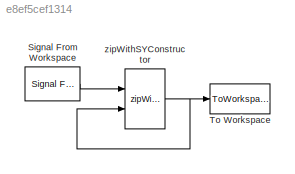
MODEL slx_e8ef5cef1314
KIND model
CONFIG AbsTol = auto
CONFIG EnableMultiTasking = off
CONFIG FixedStep = auto
CONFIG MaxStep = auto
CONFIG MinStep = auto
CONFIG RelTol = 1e-3
CONFIG SampleTimeConstraint = Unconstrained
CONFIG SolverName = VariableStepAuto
CONFIG StartTime = 0.0
CONFIG StopTime = 10.0
BLOCK [Reference] Signal From Workspace  REF=dspsrcs4/Signal From
Workspace
  Ports = [0, 1]
  SourceBlock = dspsrcs4/Signal From\nWorkspace
  SourceProductBaseCode = DS
  SourceType = Signal From Workspace
BLOCK [ToWorkspace] To Workspace
  FixptAsFi = on
  MaxDataPoints = inf
  Ports = [1]
  SampleTime = -1
  VariableName = simout
BLOCK [Reference] zipWithSYConstructor  REF=SimulinkForSyDe/zipWithSYConstructor
  Ports = [2, 1]
  SourceBlock = SimulinkForSyDe/zipWithSYConstructor
  SourceProductName = Simulink ForSyDe
  SourceType = SubSystem
LINE Signal From Workspace:1 -> zipWithSYConstructor:1
NET zipWithSYConstructor:1 -> To Workspace:1, zipWithSYConstructor:2
note: NET lines group one-source signal fan-out (src -> all destinations, sorted); 1:1 wires keep LINE
